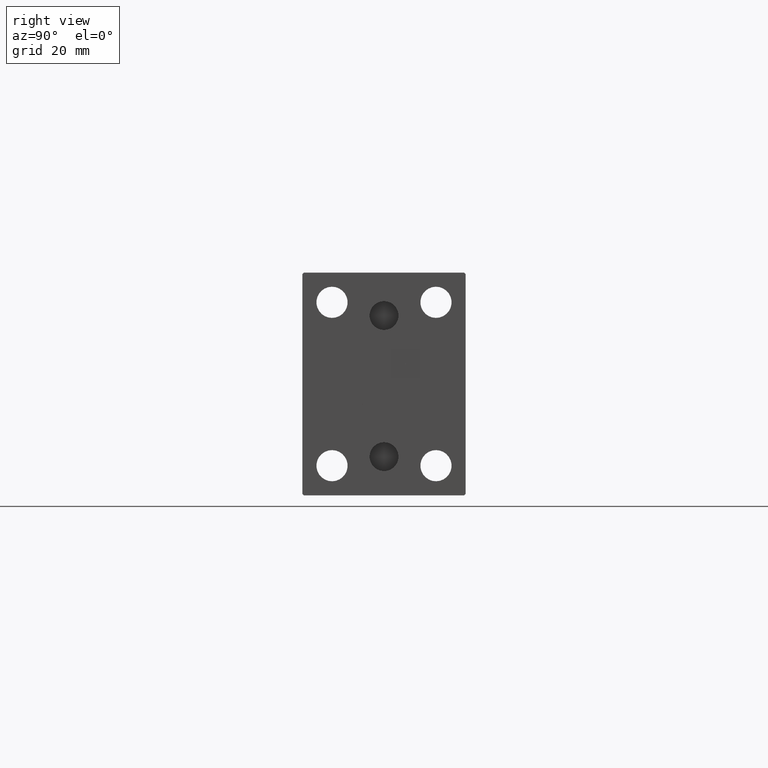
[diagram: clean part render]
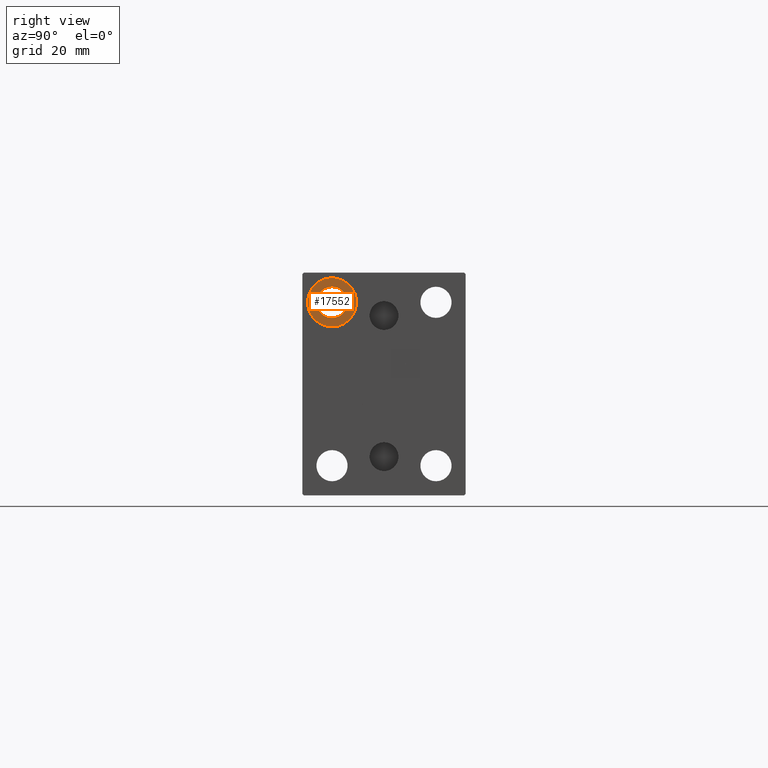
[diagram: same view with one face highlighted and labeled with its STEP entity id]
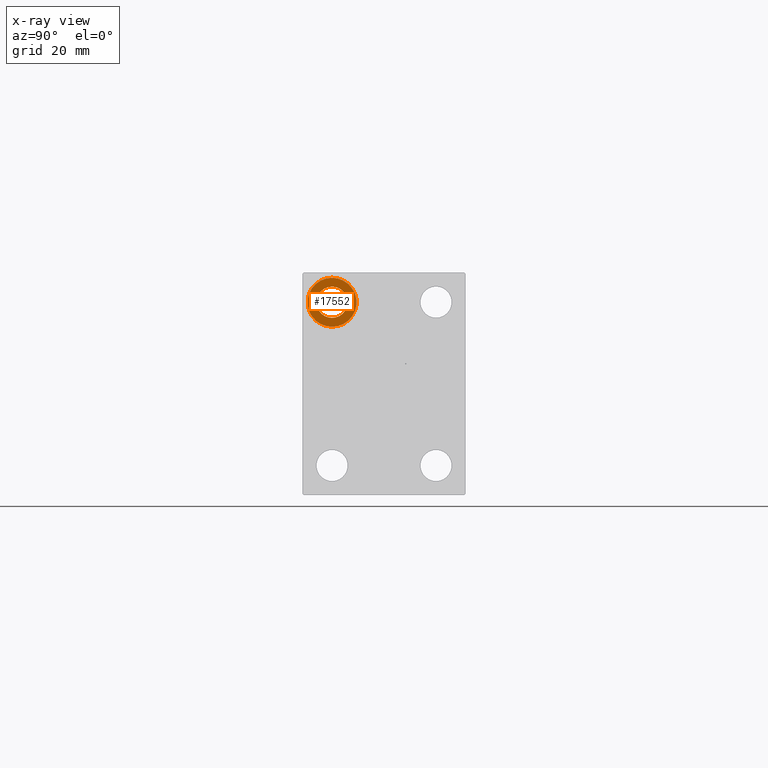
[diagram: x-ray of the same camera — body ghosted, the highlighted face saturated]
A machine part, right view. The second image highlights one B-rep face of the part: STEP entity #17552.
The next image is the same camera in x-ray: the body ghosted, the highlighted face saturated — about 0% of this face is hidden behind the body in this view.
In plain terms, the highlighted planar face has unit normal (1, 0, 0).
Its self-contained STEP definition (entity closure, byte-faithful):
#788 = AXIS2_PLACEMENT_3D ( 'NONE', #28289, #17738, #17287 ) ;
#5724 = PLANE ( 'NONE',  #43811 ) ;
#6120 = CARTESIAN_POINT ( 'NONE',  ( 144.0000000000000000, -17.49999999999999645, 27.49999999999999645 ) ) ;
#6678 = DIRECTION ( 'NONE',  ( 0.000000000000000000, 0.000000000000000000, -1.000000000000000000 ) ) ;
#7950 = ORIENTED_EDGE ( 'NONE', *, *, #42561, .F. ) ;
#9743 = DIRECTION ( 'NONE',  ( -1.000000000000000000, -0.000000000000000000, -0.000000000000000000 ) ) ;
#10207 = CARTESIAN_POINT ( 'NONE',  ( 144.0000000000000000, -17.49999999999999645, 27.49999999999999645 ) ) ;
#12156 = VERTEX_POINT ( 'NONE', #36726 ) ;
#13003 = FACE_BOUND ( 'NONE', #29075, .T. ) ;
#13530 = CARTESIAN_POINT ( 'NONE',  ( 144.0000000000000000, -17.49999999999999645, 35.74999999999999289 ) ) ;
#14186 = CARTESIAN_POINT ( 'NONE',  ( 144.0000000000000000, -17.49999999999999645, 19.25000000000000000 ) ) ;
#14703 = ORIENTED_EDGE ( 'NONE', *, *, #45588, .F. ) ;
#17287 = DIRECTION ( 'NONE',  ( 0.000000000000000000, 0.000000000000000000, 1.000000000000000000 ) ) ;
#17552 = ADVANCED_FACE ( 'NONE', ( #19591, #13003 ), #5724, .T. ) ;
#17738 = DIRECTION ( 'NONE',  ( -1.000000000000000000, -0.000000000000000000, -0.000000000000000000 ) ) ;
#19591 = FACE_OUTER_BOUND ( 'NONE', #44161, .T. ) ;
#23256 = CIRCLE ( 'NONE', #25535, 8.249999999999992895 ) ;
#23305 = DIRECTION ( 'NONE',  ( -1.000000000000000000, -0.000000000000000000, -0.000000000000000000 ) ) ;
#23477 = DIRECTION ( 'NONE',  ( -1.000000000000000000, -0.000000000000000000, -0.000000000000000000 ) ) ;
#23781 = DIRECTION ( 'NONE',  ( 1.000000000000000000, 0.000000000000000000, -0.000000000000000000 ) ) ;
#25535 = AXIS2_PLACEMENT_3D ( 'NONE', #6120, #23477, #27693 ) ;
#27693 = DIRECTION ( 'NONE',  ( 0.000000000000000000, 0.000000000000000000, 1.000000000000000000 ) ) ;
#28289 = CARTESIAN_POINT ( 'NONE',  ( 144.0000000000000000, -17.49999999999999645, 27.49999999999999645 ) ) ;
#29075 = EDGE_LOOP ( 'NONE', ( #30042, #37679 ) ) ;
#29525 = VERTEX_POINT ( 'NONE', #13530 ) ;
#30042 = ORIENTED_EDGE ( 'NONE', *, *, #37017, .T. ) ;
#31939 = VERTEX_POINT ( 'NONE', #43505 ) ;
#33112 = AXIS2_PLACEMENT_3D ( 'NONE', #10207, #9743, #6678 ) ;
#33659 = DIRECTION ( 'NONE',  ( 0.000000000000000000, 0.000000000000000000, 1.000000000000000000 ) ) ;
#36117 = CIRCLE ( 'NONE', #38369, 5.249999999999997335 ) ;
#36726 = CARTESIAN_POINT ( 'NONE',  ( 144.0000000000000000, -17.49999999999999645, 32.74999999999999289 ) ) ;
#37017 = EDGE_CURVE ( 'NONE', #12156, #31939, #45861, .T. ) ;
#37055 = VERTEX_POINT ( 'NONE', #14186 ) ;
#37183 = EDGE_CURVE ( 'NONE', #31939, #12156, #36117, .T. ) ;
#37191 = CARTESIAN_POINT ( 'NONE',  ( 144.0000000000000000, 0.000000000000000000, 0.000000000000000000 ) ) ;
#37627 = DIRECTION ( 'NONE',  ( 0.000000000000000000, 0.000000000000000000, -1.000000000000000000 ) ) ;
#37679 = ORIENTED_EDGE ( 'NONE', *, *, #37183, .T. ) ;
#38369 = AXIS2_PLACEMENT_3D ( 'NONE', #40210, #23305, #37627 ) ;
#40210 = CARTESIAN_POINT ( 'NONE',  ( 144.0000000000000000, -17.49999999999999645, 27.49999999999999645 ) ) ;
#41978 = CIRCLE ( 'NONE', #788, 8.249999999999992895 ) ;
#42561 = EDGE_CURVE ( 'NONE', #29525, #37055, #23256, .T. ) ;
#43505 = CARTESIAN_POINT ( 'NONE',  ( 144.0000000000000000, -17.49999999999999645, 22.25000000000000000 ) ) ;
#43811 = AXIS2_PLACEMENT_3D ( 'NONE', #37191, #23781, #33659 ) ;
#44161 = EDGE_LOOP ( 'NONE', ( #14703, #7950 ) ) ;
#45588 = EDGE_CURVE ( 'NONE', #37055, #29525, #41978, .T. ) ;
#45861 = CIRCLE ( 'NONE', #33112, 5.249999999999997335 ) ;